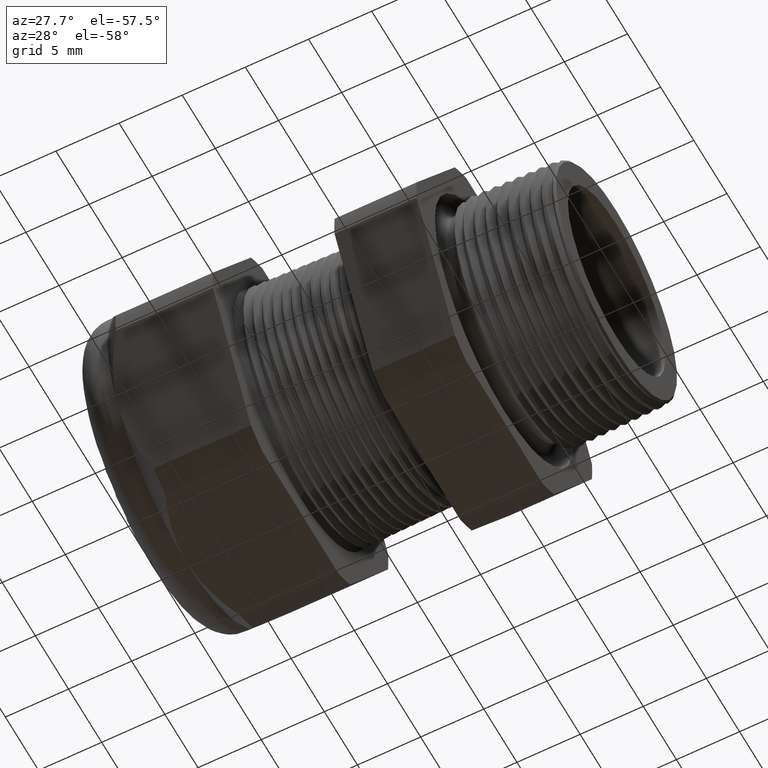
[diagram: clean part render]
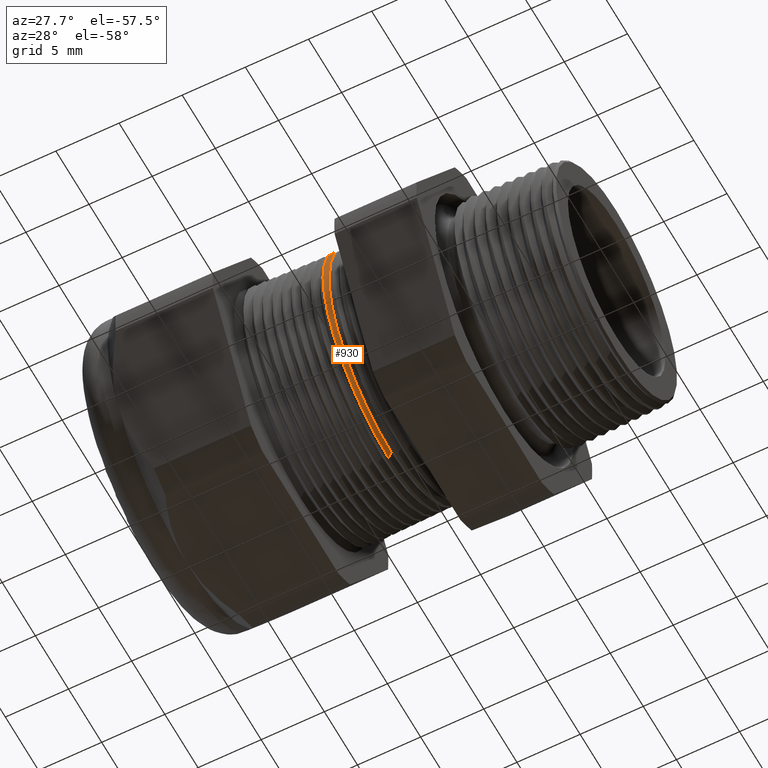
[diagram: same view with one face highlighted and labeled with its STEP entity id]
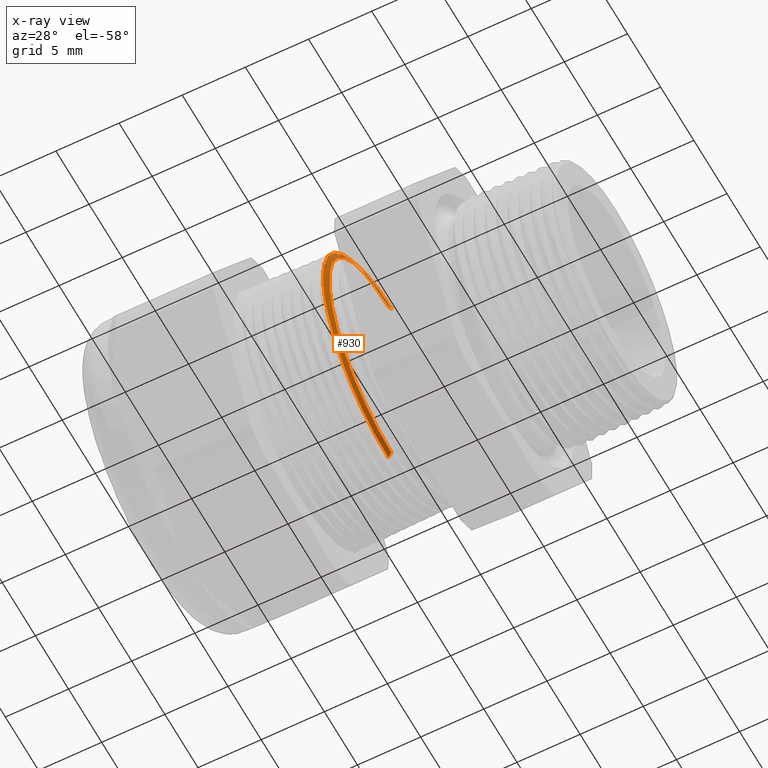
[diagram: x-ray of the same camera — body ghosted, the highlighted face saturated]
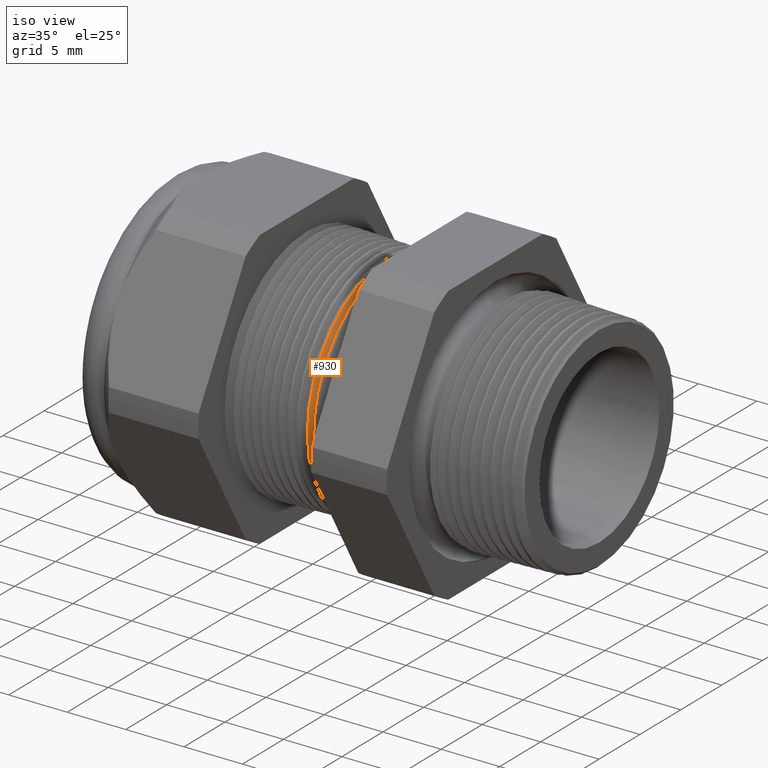
[diagram: same view with one face highlighted and labeled with its STEP entity id]
A machine part, auxiliary view. The second image highlights one B-rep face of the part: STEP entity #930.
The next image is the same camera in x-ray: the body ghosted, the highlighted face saturated — about 6% of this face is hidden behind the body in this view.
A second angle (iso view) of the same face is appended — the face is thin or edge-on in the first view.
In plain terms, the highlighted conical surface has half-angle 61.5 deg.
Its self-contained STEP definition (entity closure, byte-faithful):
#340 = EDGE_CURVE ( 'NONE', #4768, #4727, #1745, .T. ) ;
#930 = ADVANCED_FACE ( 'NONE', ( #2793 ), #2792, .T. ) ;
#931 = EDGE_LOOP ( 'NONE', ( #932, #984, #986, #987 ) ) ;
#932 = ORIENTED_EDGE ( 'NONE', *, *, #4725, .F. ) ;
#984 = ORIENTED_EDGE ( 'NONE', *, *, #985, .F. ) ;
#985 = EDGE_CURVE ( 'NONE', #4780, #4750, #2851, .T. ) ;
#986 = ORIENTED_EDGE ( 'NONE', *, *, #4787, .T. ) ;
#987 = ORIENTED_EDGE ( 'NONE', *, *, #340, .T. ) ;
#1689 = CARTESIAN_POINT ( 'NONE',  ( -0.6715388995868787300, 0.0000000000000000000, 0.0000000000000000000 ) ) ;
#1742 = DIRECTION ( 'NONE',  ( 0.0000000000000000000, 0.0000000000000000000, 1.000000000000000000 ) ) ;
#1743 = DIRECTION ( 'NONE',  ( 1.000000000000000000, 0.0000000000000000000, 0.0000000000000000000 ) ) ;
#1744 = AXIS2_PLACEMENT_3D ( 'NONE', #1689, #1743, #1742 ) ;
#1745 = CIRCLE ( 'NONE', #1744, 0.3878278287126258300 ) ;
#2787 = DIRECTION ( 'NONE',  ( 0.0000000000000000000, 0.0000000000000000000, 1.000000000000000000 ) ) ;
#2788 = DIRECTION ( 'NONE',  ( -1.000000000000000000, 0.0000000000000000000, 0.0000000000000000000 ) ) ;
#2789 = CARTESIAN_POINT ( 'NONE',  ( -0.6754330708661417900, 0.0000000000000000000, 0.0000000000000000000 ) ) ;
#2790 = AXIS2_PLACEMENT_3D ( 'NONE', #2789, #2788, #2787 ) ;
#2792 = CONICAL_SURFACE ( 'NONE', #2790, 0.3950000000000000200, 1.073377489976499400 ) ;
#2793 = FACE_OUTER_BOUND ( 'NONE', #931, .T. ) ;
#2848 = DIRECTION ( 'NONE',  ( 0.0000000000000000000, 0.0000000000000000000, -1.000000000000000000 ) ) ;
#2849 = DIRECTION ( 'NONE',  ( 1.000000000000000000, 0.0000000000000000000, 0.0000000000000000000 ) ) ;
#2850 = AXIS2_PLACEMENT_3D ( 'NONE', #2856, #2849, #2848 ) ;
#2851 = CIRCLE ( 'NONE', #2850, 0.3696307351718083900 ) ;
#2856 = CARTESIAN_POINT ( 'NONE',  ( -0.6616586839320377500, 0.0000000000000000000, 0.0000000000000000000 ) ) ;
#3738 = CARTESIAN_POINT ( 'NONE',  ( -0.6715388995868787300, 4.750936425541164300E-017, -0.3878278287126258300 ) ) ;
#3739 = DIRECTION ( 'NONE',  ( -0.4771587602596201200, 1.076240564057387000E-016, -0.8788171126619589400 ) ) ;
#3740 = VECTOR ( 'NONE', #3739, 39.37007874015748100 ) ;
#3741 = CARTESIAN_POINT ( 'NONE',  ( -0.6754330708661417900, 4.837354856632045600E-017, -0.3950000000000000200 ) ) ;
#3742 = LINE ( 'NONE', #3741, #3740 ) ;
#3770 = CARTESIAN_POINT ( 'NONE',  ( -0.6616586839320377500, 4.638096028739116200E-017, -0.3696307351718083900 ) ) ;
#3797 = CARTESIAN_POINT ( 'NONE',  ( -0.6715388995868787300, 0.0000000000000000000, 0.3878278287126258300 ) ) ;
#3821 = DIRECTION ( 'NONE',  ( -0.4771587602596201200, 0.0000000000000000000, 0.8788171126619589400 ) ) ;
#3822 = VECTOR ( 'NONE', #3821, 39.37007874015748100 ) ;
#3823 = CARTESIAN_POINT ( 'NONE',  ( -0.6754330708661417900, 0.0000000000000000000, 0.3950000000000000200 ) ) ;
#3824 = LINE ( 'NONE', #3823, #3822 ) ;
#3834 = CARTESIAN_POINT ( 'NONE',  ( -0.6616586839320377500, 0.0000000000000000000, 0.3696307351718083900 ) ) ;
#4725 = EDGE_CURVE ( 'NONE', #4750, #4727, #3742, .T. ) ;
#4727 = VERTEX_POINT ( 'NONE', #3738 ) ;
#4750 = VERTEX_POINT ( 'NONE', #3770 ) ;
#4768 = VERTEX_POINT ( 'NONE', #3797 ) ;
#4780 = VERTEX_POINT ( 'NONE', #3834 ) ;
#4787 = EDGE_CURVE ( 'NONE', #4780, #4768, #3824, .T. ) ;